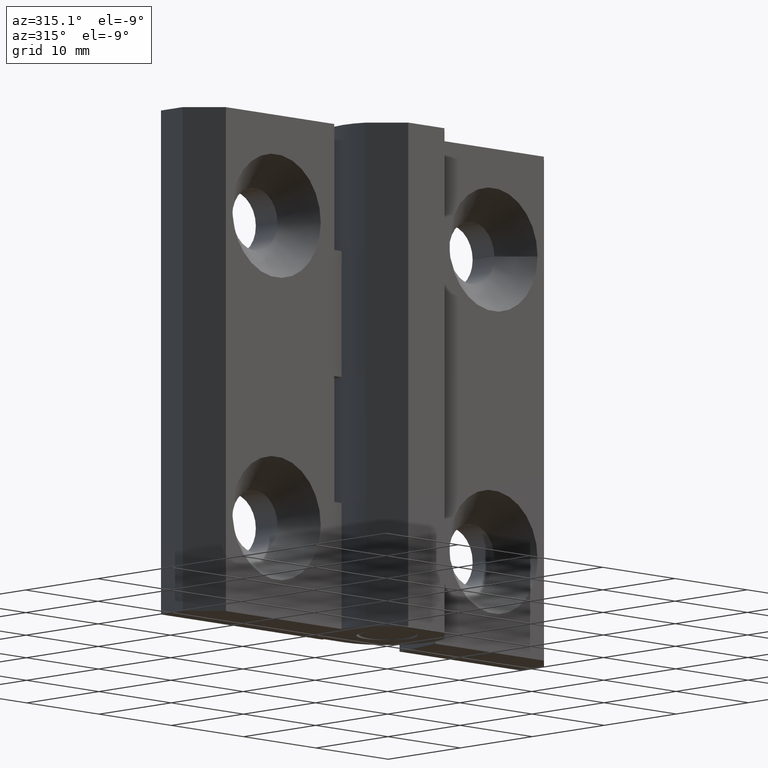
[diagram: clean part render]
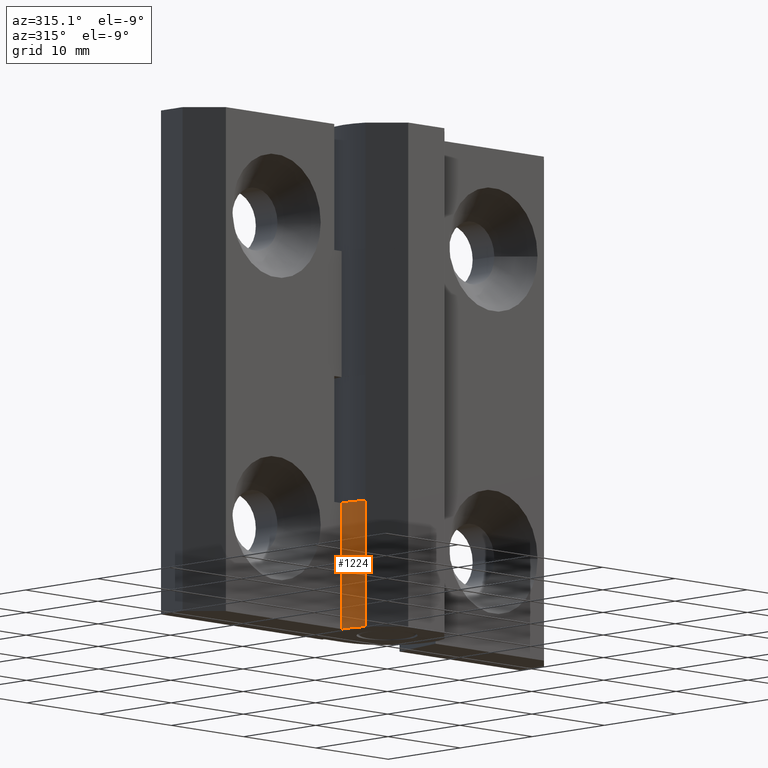
[diagram: same view with one face highlighted and labeled with its STEP entity id]
A machine part, auxiliary view. The second image highlights one B-rep face of the part: STEP entity #1224.
In plain terms, the highlighted cylindrical surface (partial cylindrical patch) has radius 6 mm, axis along (0, 0, -1).
Its self-contained STEP definition (entity closure, byte-faithful):
#51=CYLINDRICAL_SURFACE('',#1319,6.);
#112=CIRCLE('',#1320,6.);
#113=CIRCLE('',#1321,6.);
#169=FACE_OUTER_BOUND('',#251,.T.);
#251=EDGE_LOOP('',(#1017,#1018,#1019,#1020));
#363=LINE('',#1905,#485);
#382=LINE('',#1956,#504);
#485=VECTOR('',#1545,12.5);
#504=VECTOR('',#1590,12.5);
#600=VERTEX_POINT('',#1902);
#601=VERTEX_POINT('',#1904);
#619=VERTEX_POINT('',#1953);
#620=VERTEX_POINT('',#1955);
#741=EDGE_CURVE('',#601,#600,#363,.T.);
#765=EDGE_CURVE('',#600,#619,#112,.T.);
#766=EDGE_CURVE('',#620,#619,#382,.T.);
#767=EDGE_CURVE('',#601,#620,#113,.T.);
#1017=ORIENTED_EDGE('',*,*,#741,.T.);
#1018=ORIENTED_EDGE('',*,*,#765,.T.);
#1019=ORIENTED_EDGE('',*,*,#766,.F.);
#1020=ORIENTED_EDGE('',*,*,#767,.F.);
#1224=ADVANCED_FACE('',(#169),#51,.T.);
#1319=AXIS2_PLACEMENT_3D('',#1952,#1586,#1587);
#1320=AXIS2_PLACEMENT_3D('',#1954,#1588,#1589);
#1321=AXIS2_PLACEMENT_3D('',#1957,#1591,#1592);
#1545=DIRECTION('',(0.,0.,-1.));
#1586=DIRECTION('center_axis',(0.,0.,1.));
#1587=DIRECTION('ref_axis',(0.,-1.,0.));
#1588=DIRECTION('center_axis',(0.,0.,1.));
#1589=DIRECTION('ref_axis',(0.,-1.,0.));
#1590=DIRECTION('',(0.,0.,-1.));
#1591=DIRECTION('center_axis',(0.,0.,1.));
#1592=DIRECTION('ref_axis',(0.,-1.,0.));
#1902=CARTESIAN_POINT('',(5.45435605731786,-2.49999999999999,12.5));
#1904=CARTESIAN_POINT('',(5.45435605731786,-2.49999999999999,25.));
#1905=CARTESIAN_POINT('',(5.45435605731786,-2.49999999999999,0.));
#1952=CARTESIAN_POINT('Origin',(0.,0.,0.));
#1953=CARTESIAN_POINT('',(5.99249530663146,0.299999999999985,12.5));
#1954=CARTESIAN_POINT('Origin',(0.,0.,12.5));
#1955=CARTESIAN_POINT('',(5.99249530663146,0.299999999999985,25.));
#1956=CARTESIAN_POINT('',(5.99249530663146,0.299999999999985,0.));
#1957=CARTESIAN_POINT('Origin',(0.,0.,25.));